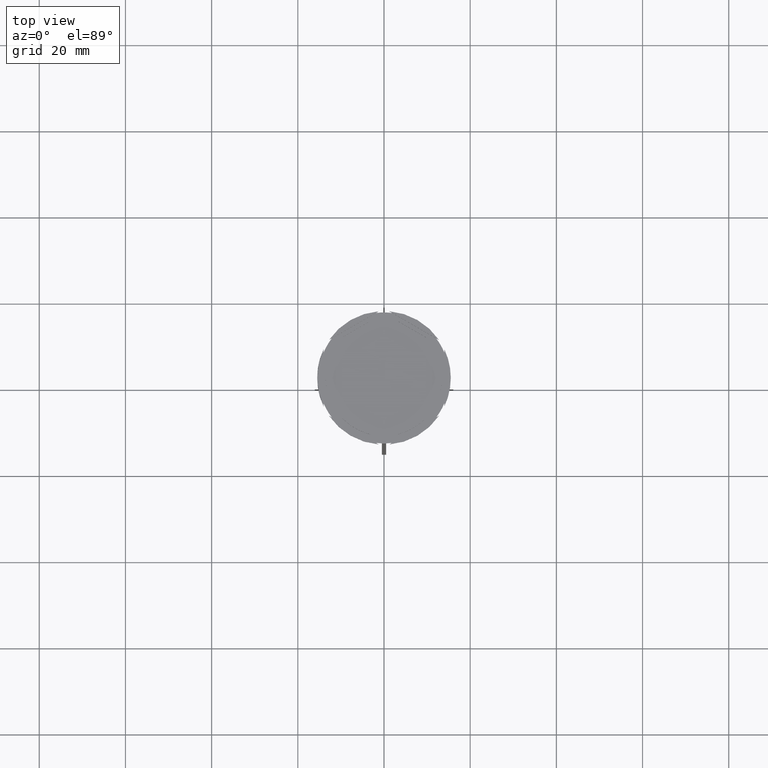
[diagram: clean part render]
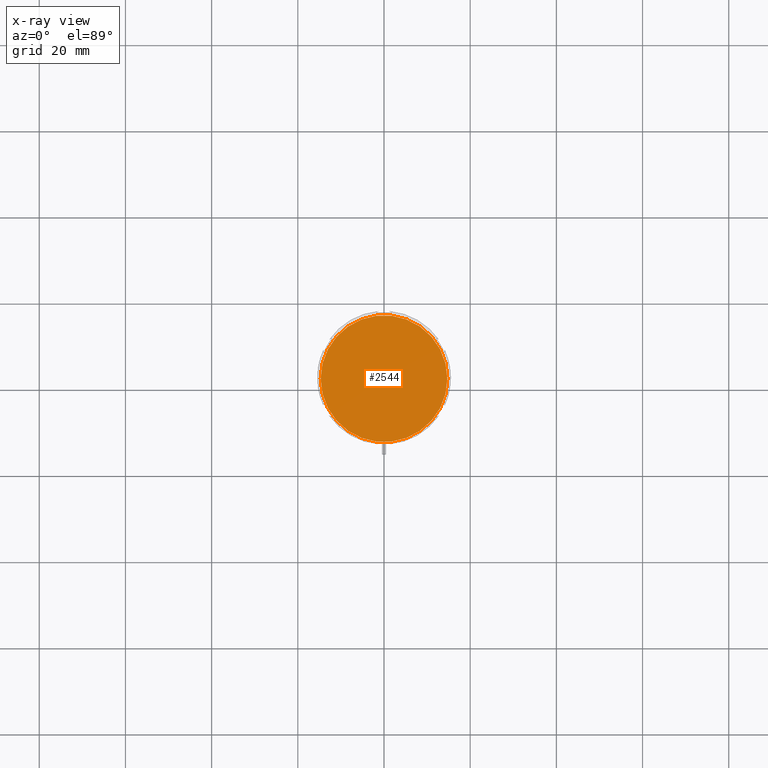
[diagram: x-ray — body ghosted, one internal face saturated and labeled with its STEP entity id]
A machine part, top view, then the same camera in x-ray: the body is ghosted and one INTERNAL B-rep face — a face not visible from any outside direction — is saturated and labeled: STEP entity #2544.
In plain terms, the highlighted planar face has unit normal (0, 0, -1).
Its self-contained STEP definition (entity closure, byte-faithful):
#103 = VERTEX_POINT ( 'NONE', #2806 ) ;
#235 = AXIS2_PLACEMENT_3D ( 'NONE', #1973, #1736, #671 ) ;
#300 = ORIENTED_EDGE ( 'NONE', *, *, #2718, .T. ) ;
#671 = DIRECTION ( 'NONE',  ( -1.000000000000000000, 0.000000000000000000, 0.000000000000000000 ) ) ;
#834 = FACE_OUTER_BOUND ( 'NONE', #1153, .T. ) ;
#979 = CIRCLE ( 'NONE', #2679, 14.70000000000000107 ) ;
#1153 = EDGE_LOOP ( 'NONE', ( #300, #1222 ) ) ;
#1222 = ORIENTED_EDGE ( 'NONE', *, *, #2312, .T. ) ;
#1624 = VERTEX_POINT ( 'NONE', #2307 ) ;
#1736 = DIRECTION ( 'NONE',  ( -0.000000000000000000, -0.000000000000000000, 1.000000000000000000 ) ) ;
#1807 = AXIS2_PLACEMENT_3D ( 'NONE', #2340, #2770, #1930 ) ;
#1930 = DIRECTION ( 'NONE',  ( -1.000000000000000000, 0.000000000000000000, -0.000000000000000000 ) ) ;
#1973 = CARTESIAN_POINT ( 'NONE',  ( 0.000000000000000000, 0.000000000000000000, -12.00000000000000000 ) ) ;
#2105 = PLANE ( 'NONE',  #1807 ) ;
#2223 = CARTESIAN_POINT ( 'NONE',  ( 0.000000000000000000, 0.000000000000000000, -12.00000000000000000 ) ) ;
#2307 = CARTESIAN_POINT ( 'NONE',  ( 14.70000000000000107, 1.818600496733819553E-15, -12.00000000000000000 ) ) ;
#2312 = EDGE_CURVE ( 'NONE', #1624, #103, #979, .T. ) ;
#2340 = CARTESIAN_POINT ( 'NONE',  ( 0.000000000000000000, 0.000000000000000000, -12.00000000000000000 ) ) ;
#2389 = DIRECTION ( 'NONE',  ( -1.000000000000000000, 0.000000000000000000, 0.000000000000000000 ) ) ;
#2436 = DIRECTION ( 'NONE',  ( -0.000000000000000000, -0.000000000000000000, 1.000000000000000000 ) ) ;
#2544 = ADVANCED_FACE ( 'NONE', ( #834 ), #2105, .F. ) ;
#2679 = AXIS2_PLACEMENT_3D ( 'NONE', #2223, #2436, #2389 ) ;
#2718 = EDGE_CURVE ( 'NONE', #103, #1624, #2728, .T. ) ;
#2728 = CIRCLE ( 'NONE', #235, 14.70000000000000107 ) ;
#2770 = DIRECTION ( 'NONE',  ( 0.000000000000000000, 0.000000000000000000, -1.000000000000000000 ) ) ;
#2806 = CARTESIAN_POINT ( 'NONE',  ( -14.70000000000000107, 0.000000000000000000, -12.00000000000000000 ) ) ;